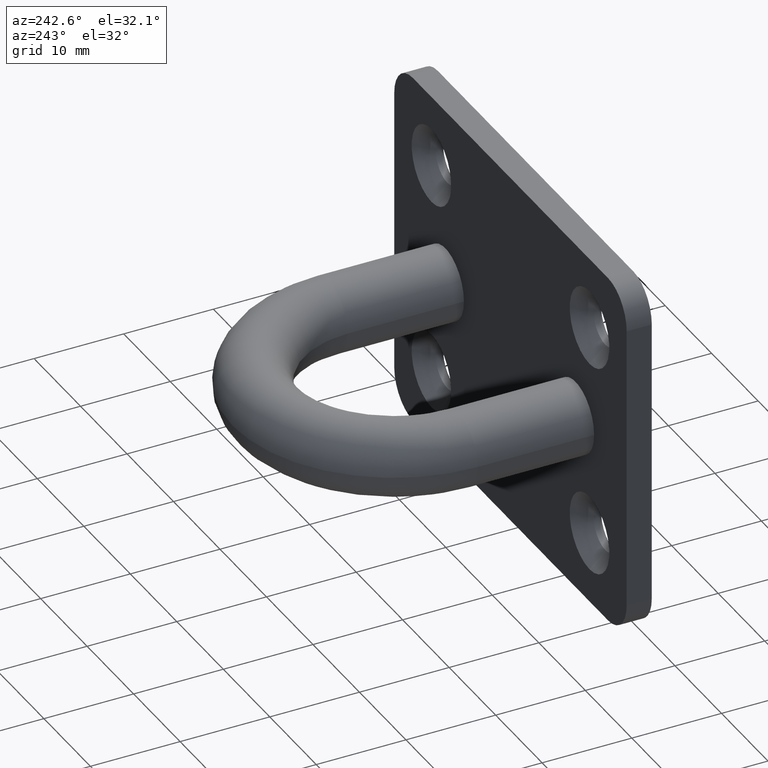
[diagram: clean part render]
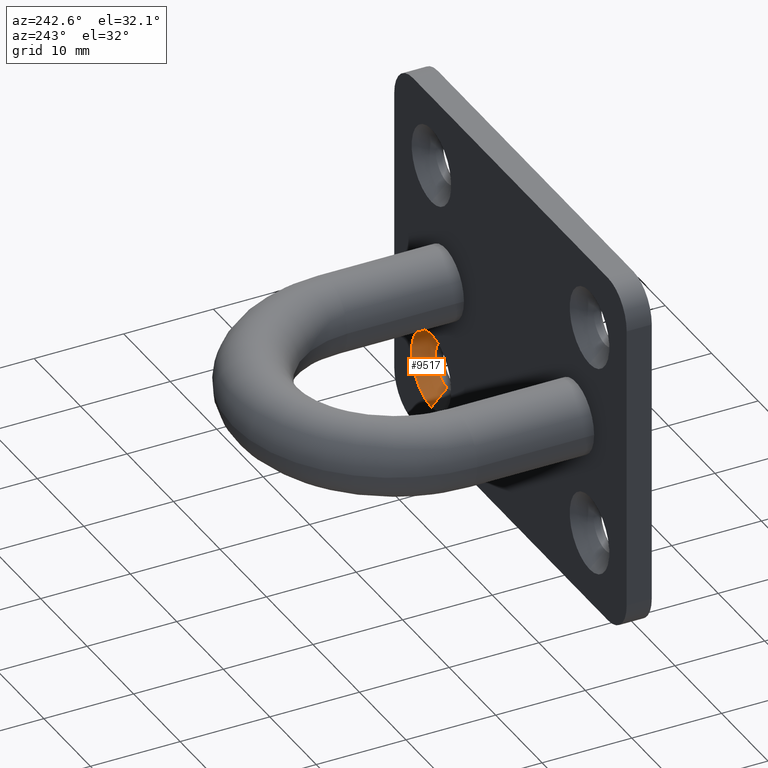
[diagram: same view with one face highlighted and labeled with its STEP entity id]
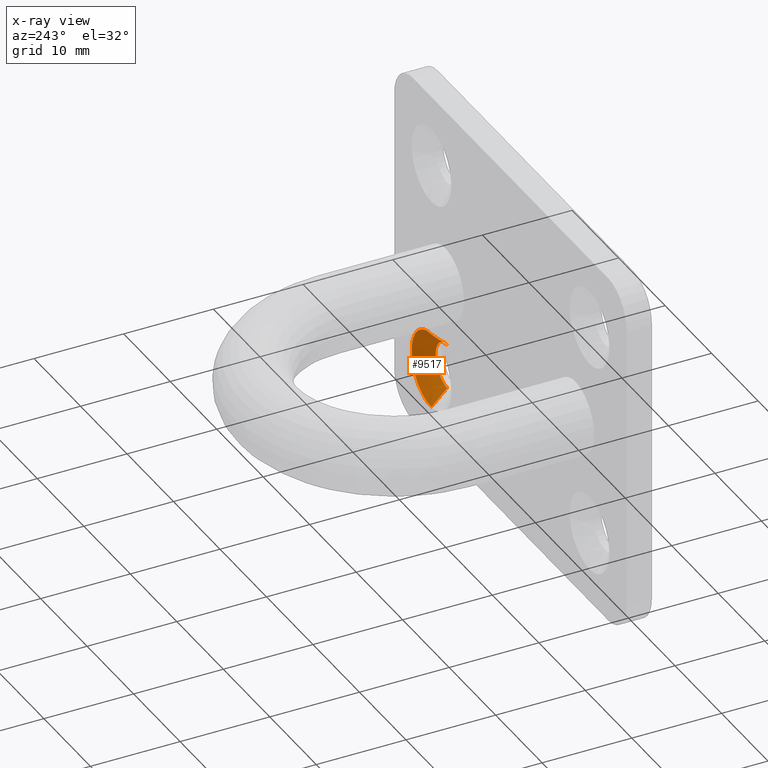
[diagram: x-ray of the same camera — body ghosted, the highlighted face saturated]
A machine part, auxiliary view. The second image highlights one B-rep face of the part: STEP entity #9517.
The next image is the same camera in x-ray: the body ghosted, the highlighted face saturated — about 1% of this face is hidden behind the body in this view.
In plain terms, the highlighted conical surface has half-angle 45 deg.
Its self-contained STEP definition (entity closure, byte-faithful):
#1414 = DIRECTION ( 'NONE',  ( 0.0000000000000000000, 0.7071067811865464600, 0.7071067811865486800 ) ) ;
#1438 = VERTEX_POINT ( 'NONE', #9697 ) ;
#1725 = LINE ( 'NONE', #6329, #10027 ) ;
#1885 = CARTESIAN_POINT ( 'NONE',  ( 16.99999999999999600, 2.799999999999999800, -16.25000000000001400 ) ) ;
#2125 = DIRECTION ( 'NONE',  ( 8.659560562354946400E-017, 0.7071067811865464600, -0.7071067811865486800 ) ) ;
#2583 = DIRECTION ( 'NONE',  ( 0.0000000000000000000, 0.0000000000000000000, -1.000000000000000000 ) ) ;
#2916 = EDGE_CURVE ( 'NONE', #1438, #3497, #9761, .T. ) ;
#3111 = ORIENTED_EDGE ( 'NONE', *, *, #7289, .F. ) ;
#3305 = CARTESIAN_POINT ( 'NONE',  ( 16.99999999999999600, 2.799999999999999800, -12.00000000000001100 ) ) ;
#3450 = DIRECTION ( 'NONE',  ( 0.0000000000000000000, 1.000000000000000000, 0.0000000000000000000 ) ) ;
#3497 = VERTEX_POINT ( 'NONE', #1885 ) ;
#3849 = CIRCLE ( 'NONE', #8254, 4.250000000000003600 ) ;
#4938 = VERTEX_POINT ( 'NONE', #13928 ) ;
#5056 = CARTESIAN_POINT ( 'NONE',  ( 16.99999999999999600, 1.050000000000000000, -12.00000000000001100 ) ) ;
#5780 = DIRECTION ( 'NONE',  ( 0.0000000000000000000, 0.0000000000000000000, -1.000000000000000000 ) ) ;
#6267 = VECTOR ( 'NONE', #2125, 1000.000000000000000 ) ;
#6329 = CARTESIAN_POINT ( 'NONE',  ( 16.99999999999999600, 1.050000000000000000, -9.500000000000012400 ) ) ;
#6455 = ORIENTED_EDGE ( 'NONE', *, *, #10141, .F. ) ;
#6854 = DIRECTION ( 'NONE',  ( 0.0000000000000000000, 0.0000000000000000000, 1.000000000000000000 ) ) ;
#7064 = AXIS2_PLACEMENT_3D ( 'NONE', #11647, #3450, #6854 ) ;
#7289 = EDGE_CURVE ( 'NONE', #3497, #9021, #3849, .T. ) ;
#8254 = AXIS2_PLACEMENT_3D ( 'NONE', #3305, #12745, #5780 ) ;
#8662 = CARTESIAN_POINT ( 'NONE',  ( 16.99999999999999600, 2.799999999999999800, -7.750000000000007100 ) ) ;
#9021 = VERTEX_POINT ( 'NONE', #8662 ) ;
#9400 = FACE_OUTER_BOUND ( 'NONE', #10892, .T. ) ;
#9517 = ADVANCED_FACE ( 'NONE', ( #9400 ), #11081, .F. ) ;
#9697 = CARTESIAN_POINT ( 'NONE',  ( 16.99999999999999600, 1.050000000000000000, -14.50000000000000900 ) ) ;
#9761 = LINE ( 'NONE', #11340, #6267 ) ;
#10027 = VECTOR ( 'NONE', #1414, 1000.000000000000000 ) ;
#10141 = EDGE_CURVE ( 'NONE', #4938, #1438, #10491, .T. ) ;
#10491 = CIRCLE ( 'NONE', #13415, 2.499999999999998700 ) ;
#10892 = EDGE_LOOP ( 'NONE', ( #12551, #6455, #14607, #3111 ) ) ;
#11081 = CONICAL_SURFACE ( 'NONE', #7064, 2.499999999999998700, 0.7853981633974498300 ) ;
#11340 = CARTESIAN_POINT ( 'NONE',  ( 16.99999999999999600, 1.050000000000000000, -14.50000000000000900 ) ) ;
#11647 = CARTESIAN_POINT ( 'NONE',  ( 16.99999999999999600, 1.050000000000000000, -12.00000000000001100 ) ) ;
#12551 = ORIENTED_EDGE ( 'NONE', *, *, #2916, .F. ) ;
#12745 = DIRECTION ( 'NONE',  ( 0.0000000000000000000, -1.000000000000000000, 0.0000000000000000000 ) ) ;
#12984 = EDGE_CURVE ( 'NONE', #4938, #9021, #1725, .T. ) ;
#13415 = AXIS2_PLACEMENT_3D ( 'NONE', #5056, #14409, #2583 ) ;
#13928 = CARTESIAN_POINT ( 'NONE',  ( 16.99999999999999600, 1.050000000000000000, -9.500000000000012400 ) ) ;
#14409 = DIRECTION ( 'NONE',  ( 0.0000000000000000000, 1.000000000000000000, 0.0000000000000000000 ) ) ;
#14607 = ORIENTED_EDGE ( 'NONE', *, *, #12984, .T. ) ;